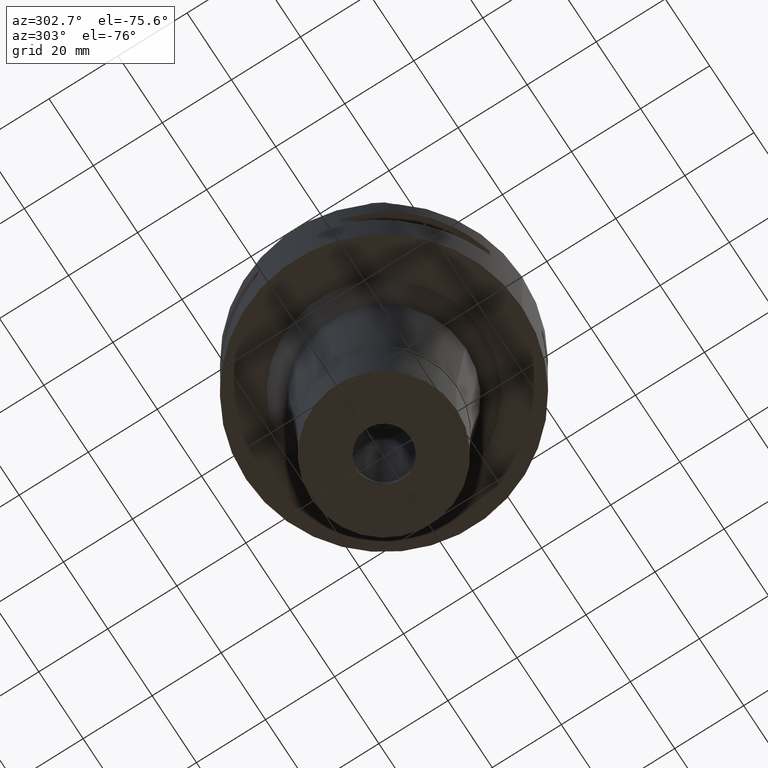
[diagram: clean part render]
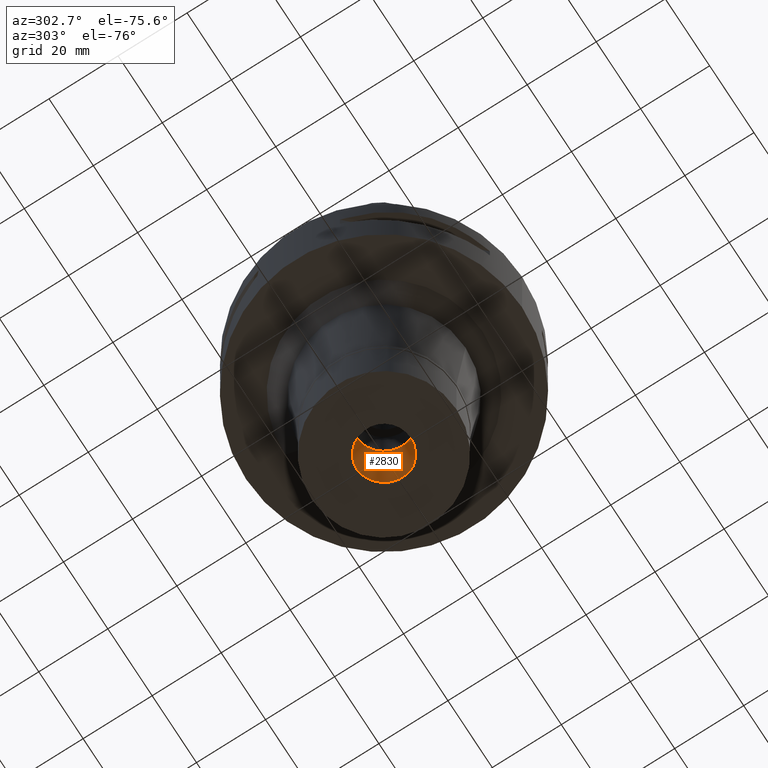
[diagram: same view with one face highlighted and labeled with its STEP entity id]
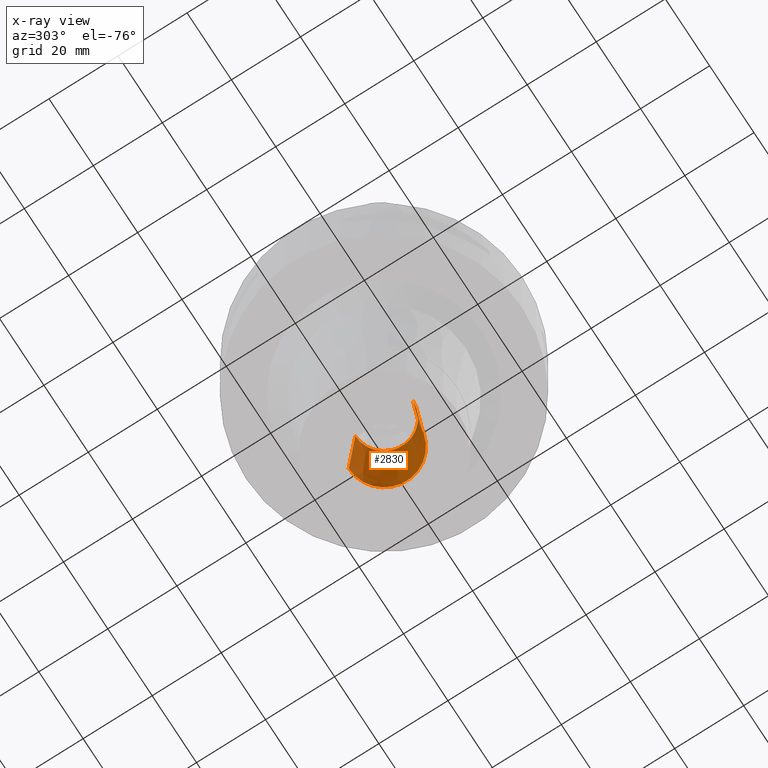
[diagram: x-ray of the same camera — body ghosted, the highlighted face saturated]
A machine part, auxiliary view. The second image highlights one B-rep face of the part: STEP entity #2830.
The next image is the same camera in x-ray: the body ghosted, the highlighted face saturated — about 8% of this face is hidden behind the body in this view.
In plain terms, the highlighted conical surface has half-angle 4 deg.
Its self-contained STEP definition (entity closure, byte-faithful):
#41 = VERTEX_POINT ( 'NONE', #4391 ) ;
#143 = CARTESIAN_POINT ( 'NONE',  ( 0.0000000000000000000, -10.25000000000000000, -82.50000000000000000 ) ) ;
#153 = CIRCLE ( 'NONE', #658, 8.300000000000000711 ) ;
#205 = CARTESIAN_POINT ( 'NONE',  ( 0.0000000000000000000, 0.0000000000000000000, -54.61370079940999744 ) ) ;
#233 = CONICAL_SURFACE ( 'NONE', #2126, 9.275000000000000355, 0.06981317007975955391 ) ;
#271 = ORIENTED_EDGE ( 'NONE', *, *, #3807, .F. ) ;
#337 = CIRCLE ( 'NONE', #2134, 10.25000000000000000 ) ;
#426 = VERTEX_POINT ( 'NONE', #3764 ) ;
#445 = EDGE_CURVE ( 'NONE', #426, #4761, #4564, .T. ) ;
#558 = FACE_OUTER_BOUND ( 'NONE', #4315, .T. ) ;
#600 = CARTESIAN_POINT ( 'NONE',  ( 0.0000000000000000000, 8.300000000000000711, -54.61370079940999744 ) ) ;
#658 = AXIS2_PLACEMENT_3D ( 'NONE', #205, #936, #2547 ) ;
#726 = EDGE_CURVE ( 'NONE', #41, #3337, #4816, .T. ) ;
#873 = DIRECTION ( 'NONE',  ( 0.0000000000000000000, 0.0000000000000000000, -1.000000000000000000 ) ) ;
#936 = DIRECTION ( 'NONE',  ( 0.0000000000000000000, 0.0000000000000000000, -1.000000000000000000 ) ) ;
#1346 = VECTOR ( 'NONE', #2161, 1000.000000000000000 ) ;
#1453 = CARTESIAN_POINT ( 'NONE',  ( 0.0000000000000000000, -8.300000000000000711, -54.61370079940999744 ) ) ;
#2035 = DIRECTION ( 'NONE',  ( 0.0000000000000000000, 1.000000000000000000, 0.0000000000000000000 ) ) ;
#2126 = AXIS2_PLACEMENT_3D ( 'NONE', #3373, #4074, #4560 ) ;
#2134 = AXIS2_PLACEMENT_3D ( 'NONE', #4348, #873, #2035 ) ;
#2161 = DIRECTION ( 'NONE',  ( 0.0000000000000000000, -0.06975647374412173585, 0.9975640502598245307 ) ) ;
#2265 = CARTESIAN_POINT ( 'NONE',  ( 0.0000000000000000000, 10.25000000000000000, -82.50000000000000000 ) ) ;
#2547 = DIRECTION ( 'NONE',  ( 0.0000000000000000000, 1.000000000000000000, 0.0000000000000000000 ) ) ;
#2625 = ORIENTED_EDGE ( 'NONE', *, *, #726, .T. ) ;
#2830 = ADVANCED_FACE ( 'NONE', ( #558 ), #233, .F. ) ;
#2905 = ORIENTED_EDGE ( 'NONE', *, *, #445, .F. ) ;
#3337 = VERTEX_POINT ( 'NONE', #1453 ) ;
#3373 = CARTESIAN_POINT ( 'NONE',  ( 0.0000000000000000000, 0.0000000000000000000, -68.55685039969999650 ) ) ;
#3715 = VECTOR ( 'NONE', #4415, 1000.000000000000000 ) ;
#3764 = CARTESIAN_POINT ( 'NONE',  ( 0.0000000000000000000, 10.25000000000000000, -82.50000000000000000 ) ) ;
#3807 = EDGE_CURVE ( 'NONE', #4761, #3337, #153, .T. ) ;
#4074 = DIRECTION ( 'NONE',  ( 0.0000000000000000000, 0.0000000000000000000, -1.000000000000000000 ) ) ;
#4315 = EDGE_LOOP ( 'NONE', ( #4328, #2625, #271, #2905 ) ) ;
#4328 = ORIENTED_EDGE ( 'NONE', *, *, #4964, .T. ) ;
#4348 = CARTESIAN_POINT ( 'NONE',  ( 0.0000000000000000000, 0.0000000000000000000, -82.50000000000000000 ) ) ;
#4391 = CARTESIAN_POINT ( 'NONE',  ( 0.0000000000000000000, -10.25000000000000000, -82.50000000000000000 ) ) ;
#4415 = DIRECTION ( 'NONE',  ( 0.0000000000000000000, 0.06975647374412173585, 0.9975640502598245307 ) ) ;
#4560 = DIRECTION ( 'NONE',  ( 0.0000000000000000000, -1.000000000000000000, 0.0000000000000000000 ) ) ;
#4564 = LINE ( 'NONE', #2265, #1346 ) ;
#4761 = VERTEX_POINT ( 'NONE', #600 ) ;
#4816 = LINE ( 'NONE', #143, #3715 ) ;
#4964 = EDGE_CURVE ( 'NONE', #426, #41, #337, .T. ) ;